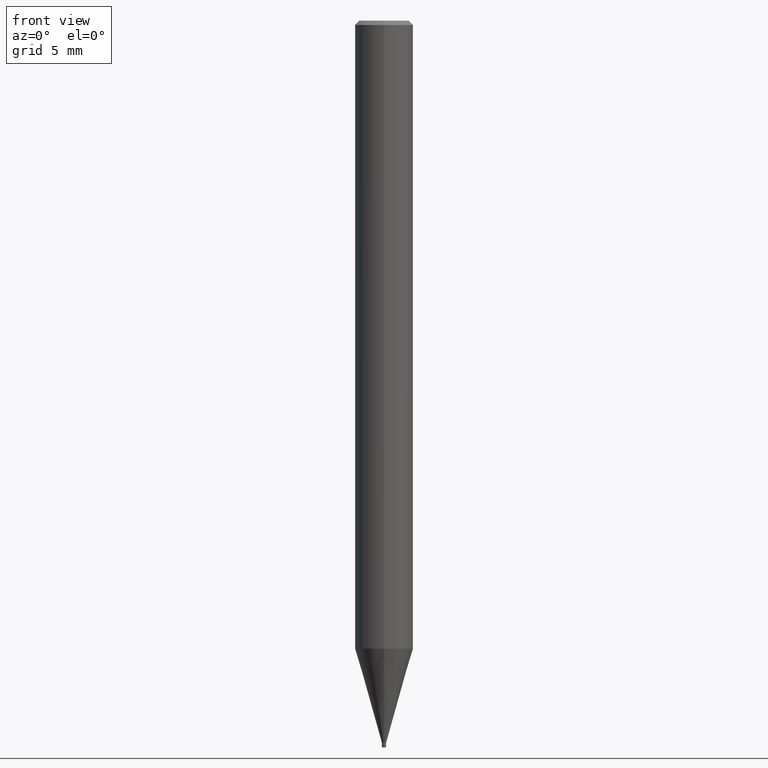
[diagram: clean part render]
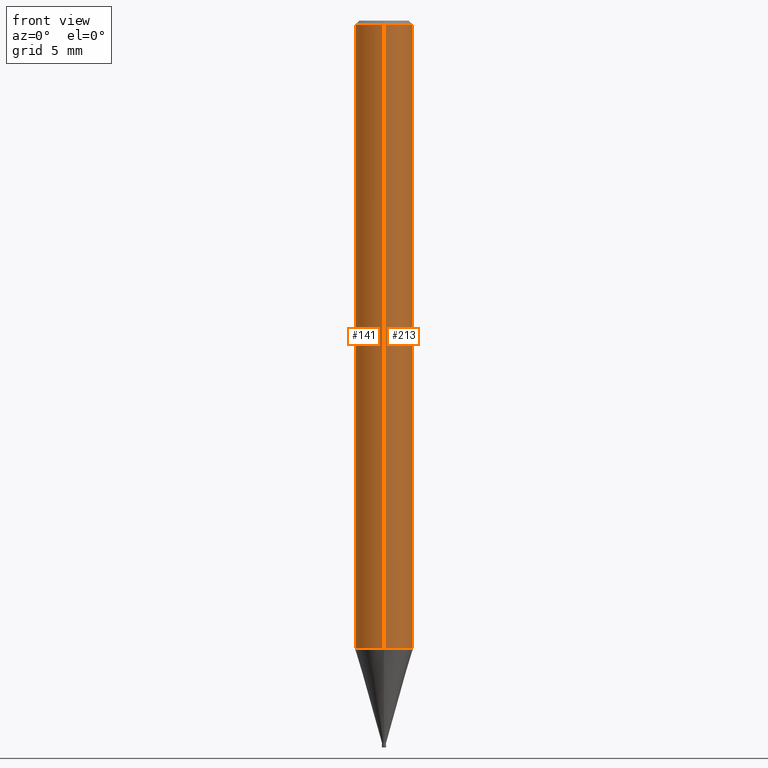
[diagram: same view with one multi-face feature highlighted, each face labeled with its STEP entity id]
A machine part, front view. The highlighted faces form ONE feature: a constant-radius fillet chain: 2 tangent blend faces with common blend radius 2 mm. The faces share edges in the B-rep.
Their STEP definitions:
[1] entity #141 (Cylinder):
#141=ADVANCED_FACE('',(#376),#377,.T.);
#161=EDGE_CURVE('',#323,#191,#399,.T.);
#191=VERTEX_POINT('',#432);
#203=EDGE_CURVE('',#191,#265,#445,.T.);
#259=EDGE_CURVE('',#267,#265,#509,.T.);
#265=VERTEX_POINT('',#516);
#267=VERTEX_POINT('',#518);
#295=EDGE_CURVE('',#267,#323,#552,.T.);
#323=VERTEX_POINT('',#582);
#376=FACE_OUTER_BOUND('',#633,.T.);
#377=CYLINDRICAL_SURFACE('',#634,2.0);
#399=CIRCLE('',#658,2.0);
#432=CARTESIAN_POINT('',(0.0,2.0,-0.289999999999999));
#445=LINE('',#716,#717);
#509=CIRCLE('',#799,2.0);
#516=CARTESIAN_POINT('',(0.0,2.0,-43.203));
#518=CARTESIAN_POINT('',(2.44921270764475E-016,-2.0,-43.203));
#552=LINE('',#856,#857);
#582=CARTESIAN_POINT('',(2.44921270764475E-016,-2.0,-0.289999999999999));
#633=EDGE_LOOP('',(#946,#947,#948,#949));
#634=AXIS2_PLACEMENT_3D('',#950,#951,#952);
#658=AXIS2_PLACEMENT_3D('',#976,#977,#978);
#716=CARTESIAN_POINT('',(-2.44921270764475E-016,2.0,-21.7465));
#717=VECTOR('',#1027,1.0);
#799=AXIS2_PLACEMENT_3D('',#1110,#1111,#1112);
#856=CARTESIAN_POINT('',(2.44921270764475E-016,-2.0,-21.7465));
#857=VECTOR('',#1180,1.0);
#946=ORIENTED_EDGE('',*,*,#203,.T.);
#947=ORIENTED_EDGE('',*,*,#259,.F.);
#948=ORIENTED_EDGE('',*,*,#295,.T.);
#949=ORIENTED_EDGE('',*,*,#161,.T.);
#950=CARTESIAN_POINT('',(0.0,0.0,-21.7465));
#951=DIRECTION('',(-0.0,-0.0,1.0));
#952=DIRECTION('',(0.0,1.0,0.0));
#976=CARTESIAN_POINT('',(0.0,0.0,-0.289999999999999));
#977=DIRECTION('',(0.0,0.0,-1.0));
#978=DIRECTION('',(0.0,1.0,0.0));
#1027=DIRECTION('',(0.0,0.0,-1.0));
#1110=CARTESIAN_POINT('',(0.0,0.0,-43.203));
#1111=DIRECTION('',(0.0,0.0,-1.0));
#1112=DIRECTION('',(0.0,1.0,0.0));
#1180=DIRECTION('',(-0.0,-0.0,1.0));
[2] entity #213 (Cylinder):
#183=EDGE_CURVE('',#191,#323,#423,.T.);
#189=EDGE_CURVE('',#265,#267,#430,.T.);
#191=VERTEX_POINT('',#432);
#203=EDGE_CURVE('',#191,#265,#445,.T.);
#213=ADVANCED_FACE('',(#455),#456,.T.);
#265=VERTEX_POINT('',#516);
#267=VERTEX_POINT('',#518);
#295=EDGE_CURVE('',#267,#323,#552,.T.);
#323=VERTEX_POINT('',#582);
#423=CIRCLE('',#687,2.0);
#430=CIRCLE('',#696,2.0);
#432=CARTESIAN_POINT('',(0.0,2.0,-0.289999999999999));
#445=LINE('',#716,#717);
#455=FACE_OUTER_BOUND('',#729,.T.);
#456=CYLINDRICAL_SURFACE('',#730,2.0);
#516=CARTESIAN_POINT('',(0.0,2.0,-43.203));
#518=CARTESIAN_POINT('',(2.44921270764475E-016,-2.0,-43.203));
#552=LINE('',#856,#857);
#582=CARTESIAN_POINT('',(2.44921270764475E-016,-2.0,-0.289999999999999));
#687=AXIS2_PLACEMENT_3D('',#1002,#1003,#1004);
#696=AXIS2_PLACEMENT_3D('',#1014,#1015,#1016);
#716=CARTESIAN_POINT('',(-2.44921270764475E-016,2.0,-21.7465));
#717=VECTOR('',#1027,1.0);
#729=EDGE_LOOP('',(#1035,#1036,#1037,#1038));
#730=AXIS2_PLACEMENT_3D('',#1039,#1040,#1041);
#856=CARTESIAN_POINT('',(2.44921270764475E-016,-2.0,-21.7465));
#857=VECTOR('',#1180,1.0);
#1002=CARTESIAN_POINT('',(0.0,0.0,-0.289999999999999));
#1003=DIRECTION('',(0.0,0.0,-1.0));
#1004=DIRECTION('',(0.0,1.0,0.0));
#1014=CARTESIAN_POINT('',(0.0,0.0,-43.203));
#1015=DIRECTION('',(0.0,0.0,-1.0));
#1016=DIRECTION('',(0.0,1.0,0.0));
#1027=DIRECTION('',(0.0,0.0,-1.0));
#1035=ORIENTED_EDGE('',*,*,#203,.F.);
#1036=ORIENTED_EDGE('',*,*,#183,.T.);
#1037=ORIENTED_EDGE('',*,*,#295,.F.);
#1038=ORIENTED_EDGE('',*,*,#189,.F.);
#1039=CARTESIAN_POINT('',(0.0,0.0,-21.7465));
#1040=DIRECTION('',(-0.0,-0.0,1.0));
#1041=DIRECTION('',(0.0,1.0,0.0));
#1180=DIRECTION('',(-0.0,-0.0,1.0));